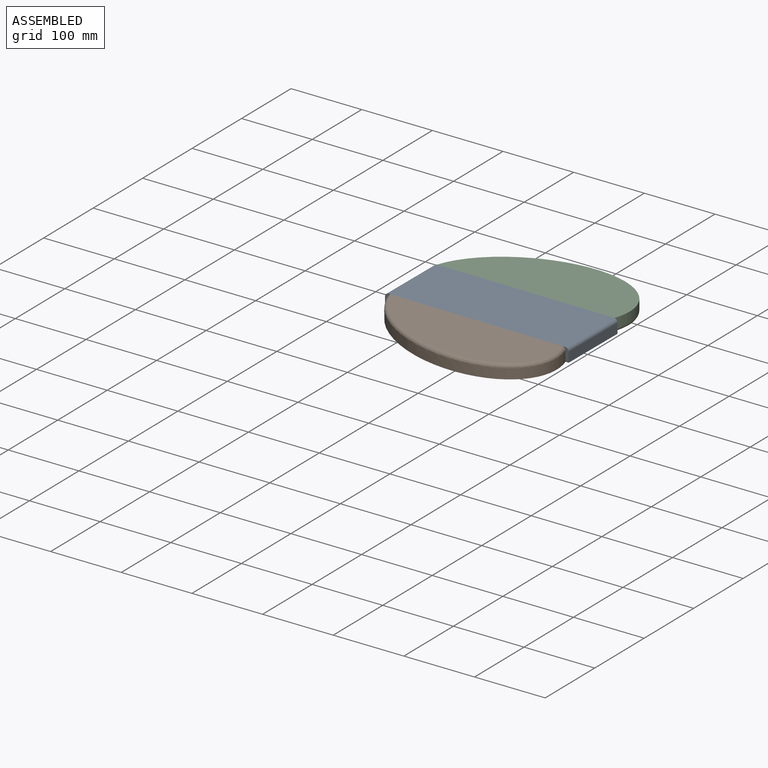
[diagram: assembled view]
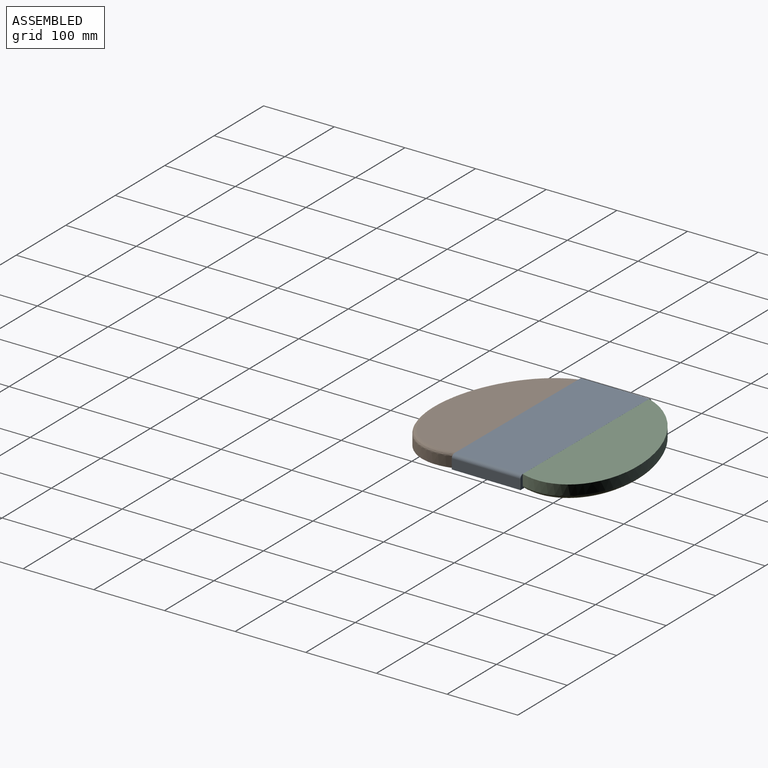
[diagram: assembled view, second angle]
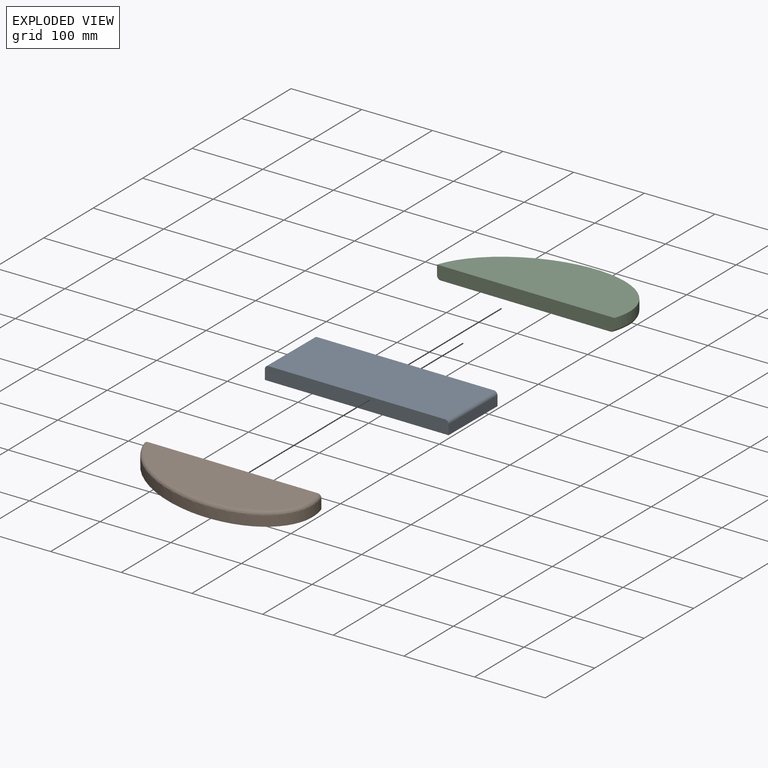
[diagram: exploded view]
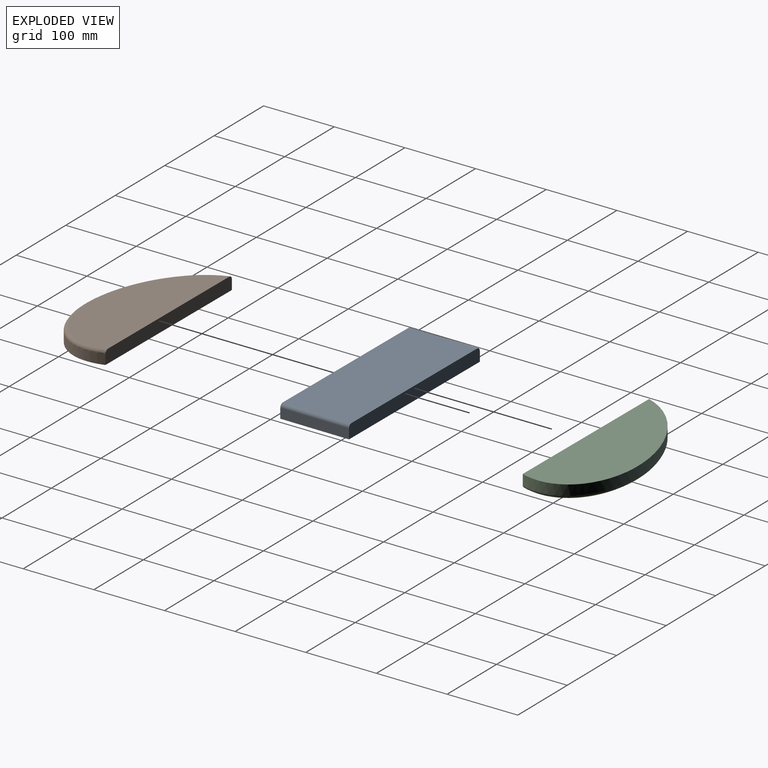
[diagram: exploded view, second angle]
ASSEMBLY  parts=3 mates=2
PART A: 8 faces, bbox 261.4x97.7x19 mm
  f0: plane 261.42x19mm, normal (0,1,0), area 4956.2mm2, adj f1,f3,f4,f5,f6,f7
  f1: plane 97.74x14mm, normal (-1,0,0), area 1368.4mm2, adj f0,f2,f5,f7
  f2: plane 261.42x19mm, normal (0,-1,0), area 4956.2mm2, adj f1,f3,f4,f5,f6,f7
  f3: plane 97.74x14mm, normal (1,0,0), area 1368.4mm2, adj f0,f2,f5,f6
  f4: plane 251.42x97.74mm, normal (0,0,1), area 24574.4mm2, adj f0,f2,f6,f7
  f5: plane 261.42x97.74mm, normal (0,0,-1), area 25551.8mm2, adj f0,f1,f2,f3
  f6: cylinder r=5mm len=97.74mm, axis (0,-1,0), area 767.7mm2, adj f0,f2,f3,f4
  f7: cylinder r=5mm len=97.74mm, axis (0,1,0), area 767.7mm2, adj f0,f1,f2,f4
PART B: 5 faces, bbox 259.4x107.3x19.8 mm
  f0: plane 253.26x19.8mm, normal (0.01,1,0), area 4785.5mm2, adj f1,f2,f3,f4
  f1: extruded ~256.39x97.52mm, area 4998.2mm2, adj f0,f3,f4
  f2: plane 246.29x92.51mm, normal (0,0,1), area 17397.5mm2, adj f0,f4
  f3: plane 256.52x97.52mm, normal (0,0,-1), area 19140.8mm2, adj f0,f1
  f4: bspline ~258.57x106.45mm, area 2759.3mm2, adj f0,f1,f2
PART C: 5 faces, bbox 259.4x107.3x19.8 mm
  f0: plane 253.26x19.8mm, normal (0.01,1,0), area 4785.5mm2, adj f1,f2,f3,f4
  f1: extruded ~256.39x97.52mm, area 4998.2mm2, adj f0,f3,f4
  f2: plane 246.29x92.51mm, normal (0,0,1), area 17397.5mm2, adj f0,f4
  f3: plane 256.52x97.52mm, normal (0,0,-1), area 19140.8mm2, adj f0,f1
  f4: bspline ~258.57x106.45mm, area 2759.3mm2, adj f0,f1,f2
PLACE A rot(axis=(0,0,-1),0.5deg) t=(-64.15,-240.3,-99.03)mm
PLACE B t=(-265.62,-147.7,-99.03)mm
PLACE C rot(axis=(1,-0.01,0),180deg) t=(-95.38,3.95,-80.07)mm
MATE ball C.f0 <-> A.f0  axis (-0.01,-1,0) through (-227.62,-43.02,-89.55)mm
MATE ball B.f0 <-> A.f2  axis (0.01,1,0) through (-228.42,-140.76,-89.55)mm
